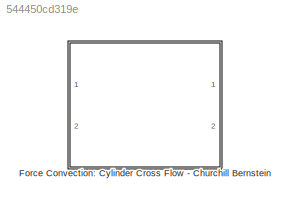
MODEL slx_544450cd319e
KIND library
CONFIG AbsTol = auto
CONFIG FixedStep = auto
CONFIG MaxStep = auto
CONFIG MinStep = auto
CONFIG RelTol = 1e-3
CONFIG SampleTimeConstraint = Unconstrained
CONFIG Solver = ode45
CONFIG SolverMode = Auto
CONFIG SolverName = ode45
CONFIG StartTime = 0.0
CONFIG StopTime = 10.0
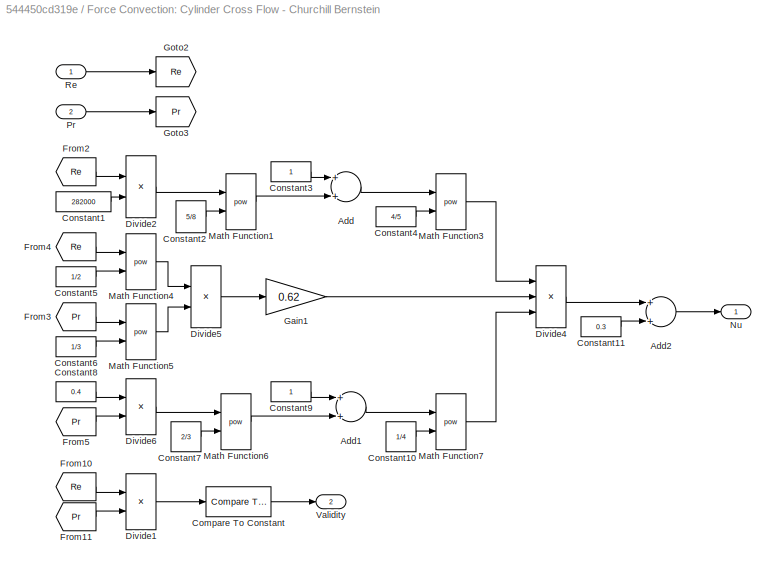
BLOCK [SubSystem] Force Convection: Cylinder Cross Flow - Churchill Bernstein
  Ports = [2, 2]
  RequestExecContextInheritance = off
BLOCK [Sum] Force Convection: Cylinder Cross Flow - Churchill Bernstein/Add
  InputSameDT = off
  OutDataTypeStr = Inherit: Inherit via internal rule
  Ports = [2, 1]
  SaturateOnIntegerOverflow = off
BLOCK [Sum] Force Convection: Cylinder Cross Flow - Churchill Bernstein/Add1
  InputSameDT = off
  OutDataTypeStr = Inherit: Inherit via internal rule
  Ports = [2, 1]
  SaturateOnIntegerOverflow = off
BLOCK [Sum] Force Convection: Cylinder Cross Flow - Churchill Bernstein/Add2
  InputSameDT = off
  OutDataTypeStr = Inherit: Inherit via internal rule
  Ports = [2, 1]
  SaturateOnIntegerOverflow = off
BLOCK [Reference] Force Convection: Cylinder Cross Flow - Churchill Bernstein/Compare To Constant  REF=simulink/Logic and Bit
Operations/Compare
To Constant
  OutDataTypeStr = boolean
  Ports = [1, 1]
  SourceBlock = simulink/Logic and Bit\nOperations/Compare\nTo Constant
  SourceType = Compare To Constant
  ZeroCross = on
  const = 0.2
  relop = <
BLOCK [Constant] Force Convection: Cylinder Cross Flow - Churchill Bernstein/Constant1
  Value = 282000
BLOCK [Constant] Force Convection: Cylinder Cross Flow - Churchill Bernstein/Constant10
  Value = 1/4
BLOCK [Constant] Force Convection: Cylinder Cross Flow - Churchill Bernstein/Constant11
  Value = 0.3
BLOCK [Constant] Force Convection: Cylinder Cross Flow - Churchill Bernstein/Constant2
  Value = 5/8
BLOCK [Constant] Force Convection: Cylinder Cross Flow - Churchill Bernstein/Constant3
BLOCK [Constant] Force Convection: Cylinder Cross Flow - Churchill Bernstein/Constant4
  Value = 4/5
BLOCK [Constant] Force Convection: Cylinder Cross Flow - Churchill Bernstein/Constant5
  Value = 1/2
BLOCK [Constant] Force Convection: Cylinder Cross Flow - Churchill Bernstein/Constant6
  Value = 1/3
BLOCK [Constant] Force Convection: Cylinder Cross Flow - Churchill Bernstein/Constant7
  Value = 2/3
BLOCK [Constant] Force Convection: Cylinder Cross Flow - Churchill Bernstein/Constant8
  Value = 0.4
BLOCK [Constant] Force Convection: Cylinder Cross Flow - Churchill Bernstein/Constant9
BLOCK [Product] Force Convection: Cylinder Cross Flow - Churchill Bernstein/Divide1
  InputSameDT = off
  Inputs = **
  OutDataTypeStr = Inherit: Inherit via internal rule
  Ports = [2, 1]
  RndMeth = Floor
  SaturateOnIntegerOverflow = off
BLOCK [Product] Force Convection: Cylinder Cross Flow - Churchill Bernstein/Divide2
  InputSameDT = off
  Inputs = */
  OutDataTypeStr = Inherit: Inherit via internal rule
  Ports = [2, 1]
  RndMeth = Floor
  SaturateOnIntegerOverflow = off
BLOCK [Product] Force Convection: Cylinder Cross Flow - Churchill Bernstein/Divide4
  InputSameDT = off
  Inputs = **/
  OutDataTypeStr = Inherit: Inherit via internal rule
  Ports = [3, 1]
  RndMeth = Floor
  SaturateOnIntegerOverflow = off
BLOCK [Product] Force Convection: Cylinder Cross Flow - Churchill Bernstein/Divide5
  InputSameDT = off
  Inputs = **
  OutDataTypeStr = Inherit: Inherit via internal rule
  Ports = [2, 1]
  RndMeth = Floor
  SaturateOnIntegerOverflow = off
BLOCK [Product] Force Convection: Cylinder Cross Flow - Churchill Bernstein/Divide6
  InputSameDT = off
  Inputs = */
  OutDataTypeStr = Inherit: Inherit via internal rule
  Ports = [2, 1]
  RndMeth = Floor
  SaturateOnIntegerOverflow = off
BLOCK [From] Force Convection: Cylinder Cross Flow - Churchill Bernstein/From10
  GotoTag = Re
BLOCK [From] Force Convection: Cylinder Cross Flow - Churchill Bernstein/From11
  GotoTag = Pr
BLOCK [From] Force Convection: Cylinder Cross Flow - Churchill Bernstein/From2
  GotoTag = Re
BLOCK [From] Force Convection: Cylinder Cross Flow - Churchill Bernstein/From3
  GotoTag = Pr
BLOCK [From] Force Convection: Cylinder Cross Flow - Churchill Bernstein/From4
  GotoTag = Re
BLOCK [From] Force Convection: Cylinder Cross Flow - Churchill Bernstein/From5
  GotoTag = Pr
BLOCK [Gain] Force Convection: Cylinder Cross Flow - Churchill Bernstein/Gain1
  Gain = 0.62
  OutDataTypeStr = Inherit: Inherit via internal rule
  ParamDataTypeStr = Inherit: Inherit via internal rule
  SaturateOnIntegerOverflow = off
BLOCK [Goto] Force Convection: Cylinder Cross Flow - Churchill Bernstein/Goto2
  GotoTag = Re
BLOCK [Goto] Force Convection: Cylinder Cross Flow - Churchill Bernstein/Goto3
  GotoTag = Pr
BLOCK [Math] Force Convection: Cylinder Cross Flow - Churchill Bernstein/Math Function1
  Operator = pow
  Ports = [2, 1]
BLOCK [Math] Force Convection: Cylinder Cross Flow - Churchill Bernstein/Math Function3
  Operator = pow
  Ports = [2, 1]
BLOCK [Math] Force Convection: Cylinder Cross Flow - Churchill Bernstein/Math Function4
  Operator = pow
  Ports = [2, 1]
BLOCK [Math] Force Convection: Cylinder Cross Flow - Churchill Bernstein/Math Function5
  Operator = pow
  Ports = [2, 1]
BLOCK [Math] Force Convection: Cylinder Cross Flow - Churchill Bernstein/Math Function6
  Operator = pow
  Ports = [2, 1]
BLOCK [Math] Force Convection: Cylinder Cross Flow - Churchill Bernstein/Math Function7
  Operator = pow
  Ports = [2, 1]
BLOCK [Outport] Force Convection: Cylinder Cross Flow - Churchill Bernstein/Nu
  IconDisplay = Port number
BLOCK [Inport] Force Convection: Cylinder Cross Flow - Churchill Bernstein/Pr
  IconDisplay = Port number
  Port = 2
BLOCK [Inport] Force Convection: Cylinder Cross Flow - Churchill Bernstein/Re
  IconDisplay = Port number
BLOCK [Outport] Force Convection: Cylinder Cross Flow - Churchill Bernstein/Validity
  IconDisplay = Port number
  Port = 2
LINE Force Convection: Cylinder Cross Flow - Churchill Bernstein/Add1:1 -> Force Convection: Cylinder Cross Flow - Churchill Bernstein/Math Function7:1
LINE Force Convection: Cylinder Cross Flow - Churchill Bernstein/Add2:1 -> Force Convection: Cylinder Cross Flow - Churchill Bernstein/Nu:1
LINE Force Convection: Cylinder Cross Flow - Churchill Bernstein/Add:1 -> Force Convection: Cylinder Cross Flow - Churchill Bernstein/Math Function3:1
LINE Force Convection: Cylinder Cross Flow - Churchill Bernstein/Compare To Constant:1 -> Force Convection: Cylinder Cross Flow - Churchill Bernstein/Validity:1
LINE Force Convection: Cylinder Cross Flow - Churchill Bernstein/Constant10:1 -> Force Convection: Cylinder Cross Flow - Churchill Bernstein/Math Function7:2
LINE Force Convection: Cylinder Cross Flow - Churchill Bernstein/Constant11:1 -> Force Convection: Cylinder Cross Flow - Churchill Bernstein/Add2:2
LINE Force Convection: Cylinder Cross Flow - Churchill Bernstein/Constant1:1 -> Force Convection: Cylinder Cross Flow - Churchill Bernstein/Divide2:2
LINE Force Convection: Cylinder Cross Flow - Churchill Bernstein/Constant2:1 -> Force Convection: Cylinder Cross Flow - Churchill Bernstein/Math Function1:2
LINE Force Convection: Cylinder Cross Flow - Churchill Bernstein/Constant3:1 -> Force Convection: Cylinder Cross Flow - Churchill Bernstein/Add:1
LINE Force Convection: Cylinder Cross Flow - Churchill Bernstein/Constant4:1 -> Force Convection: Cylinder Cross Flow - Churchill Bernstein/Math Function3:2
LINE Force Convection: Cylinder Cross Flow - Churchill Bernstein/Constant5:1 -> Force Convection: Cylinder Cross Flow - Churchill Bernstein/Math Function4:2
LINE Force Convection: Cylinder Cross Flow - Churchill Bernstein/Constant6:1 -> Force Convection: Cylinder Cross Flow - Churchill Bernstein/Math Function5:2
LINE Force Convection: Cylinder Cross Flow - Churchill Bernstein/Constant7:1 -> Force Convection: Cylinder Cross Flow - Churchill Bernstein/Math Function6:2
LINE Force Convection: Cylinder Cross Flow - Churchill Bernstein/Constant8:1 -> Force Convection: Cylinder Cross Flow - Churchill Bernstein/Divide6:1
LINE Force Convection: Cylinder Cross Flow - Churchill Bernstein/Constant9:1 -> Force Convection: Cylinder Cross Flow - Churchill Bernstein/Add1:1
LINE Force Convection: Cylinder Cross Flow - Churchill Bernstein/Divide1:1 -> Force Convection: Cylinder Cross Flow - Churchill Bernstein/Compare To Constant:1
LINE Force Convection: Cylinder Cross Flow - Churchill Bernstein/Divide2:1 -> Force Convection: Cylinder Cross Flow - Churchill Bernstein/Math Function1:1
LINE Force Convection: Cylinder Cross Flow - Churchill Bernstein/Divide4:1 -> Force Convection: Cylinder Cross Flow - Churchill Bernstein/Add2:1
LINE Force Convection: Cylinder Cross Flow - Churchill Bernstein/Divide5:1 -> Force Convection: Cylinder Cross Flow - Churchill Bernstein/Gain1:1
LINE Force Convection: Cylinder Cross Flow - Churchill Bernstein/Divide6:1 -> Force Convection: Cylinder Cross Flow - Churchill Bernstein/Math Function6:1
LINE Force Convection: Cylinder Cross Flow - Churchill Bernstein/From10:1 -> Force Convection: Cylinder Cross Flow - Churchill Bernstein/Divide1:1
LINE Force Convection: Cylinder Cross Flow - Churchill Bernstein/From11:1 -> Force Convection: Cylinder Cross Flow - Churchill Bernstein/Divide1:2
LINE Force Convection: Cylinder Cross Flow - Churchill Bernstein/From2:1 -> Force Convection: Cylinder Cross Flow - Churchill Bernstein/Divide2:1
LINE Force Convection: Cylinder Cross Flow - Churchill Bernstein/From3:1 -> Force Convection: Cylinder Cross Flow - Churchill Bernstein/Math Function5:1
LINE Force Convection: Cylinder Cross Flow - Churchill Bernstein/From4:1 -> Force Convection: Cylinder Cross Flow - Churchill Bernstein/Math Function4:1
LINE Force Convection: Cylinder Cross Flow - Churchill Bernstein/From5:1 -> Force Convection: Cylinder Cross Flow - Churchill Bernstein/Divide6:2
LINE Force Convection: Cylinder Cross Flow - Churchill Bernstein/Gain1:1 -> Force Convection: Cylinder Cross Flow - Churchill Bernstein/Divide4:2
LINE Force Convection: Cylinder Cross Flow - Churchill Bernstein/Math Function1:1 -> Force Convection: Cylinder Cross Flow - Churchill Bernstein/Add:2
LINE Force Convection: Cylinder Cross Flow - Churchill Bernstein/Math Function3:1 -> Force Convection: Cylinder Cross Flow - Churchill Bernstein/Divide4:1
LINE Force Convection: Cylinder Cross Flow - Churchill Bernstein/Math Function4:1 -> Force Convection: Cylinder Cross Flow - Churchill Bernstein/Divide5:1
LINE Force Convection: Cylinder Cross Flow - Churchill Bernstein/Math Function5:1 -> Force Convection: Cylinder Cross Flow - Churchill Bernstein/Divide5:2
LINE Force Convection: Cylinder Cross Flow - Churchill Bernstein/Math Function6:1 -> Force Convection: Cylinder Cross Flow - Churchill Bernstein/Add1:2
LINE Force Convection: Cylinder Cross Flow - Churchill Bernstein/Math Function7:1 -> Force Convection: Cylinder Cross Flow - Churchill Bernstein/Divide4:3
LINE Force Convection: Cylinder Cross Flow - Churchill Bernstein/Pr:1 -> Force Convection: Cylinder Cross Flow - Churchill Bernstein/Goto3:1
LINE Force Convection: Cylinder Cross Flow - Churchill Bernstein/Re:1 -> Force Convection: Cylinder Cross Flow - Churchill Bernstein/Goto2:1
